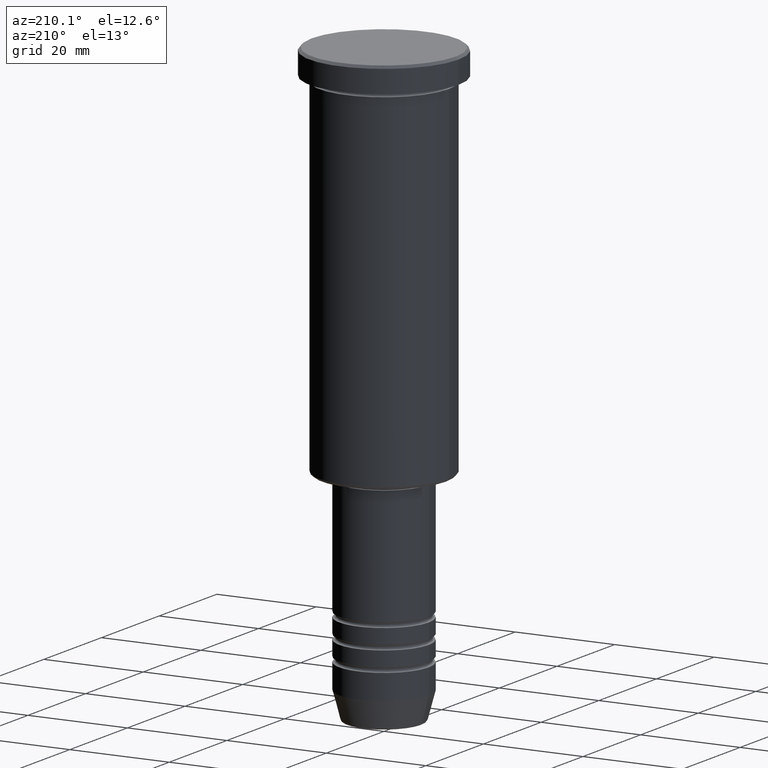
[diagram: clean part render]
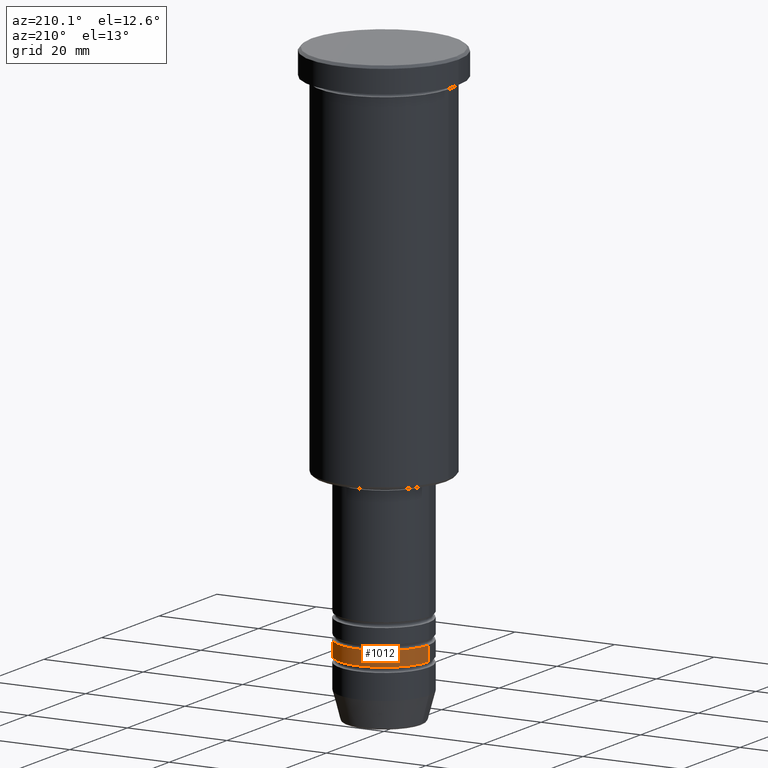
[diagram: same view with one face highlighted and labeled with its STEP entity id]
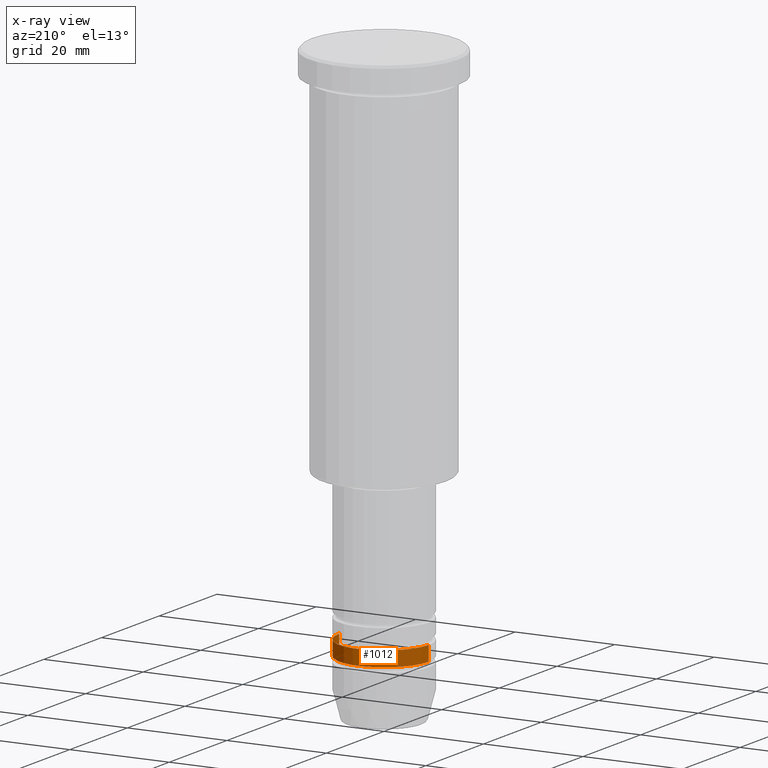
[diagram: x-ray of the same camera — body ghosted, the highlighted face saturated]
A machine part, auxiliary view. The second image highlights one B-rep face of the part: STEP entity #1012.
The next image is the same camera in x-ray: the body ghosted, the highlighted face saturated — about 0% of this face is hidden behind the body in this view.
In plain terms, the highlighted cylindrical surface (partial cylindrical patch) has radius 9 mm, axis along (-0, -0, 1).
Its self-contained STEP definition (entity closure, byte-faithful):
#56 = DIRECTION ( 'NONE',  ( -0.000000000000000000, -0.000000000000000000, 1.000000000000000000 ) ) ;
#121 = EDGE_CURVE ( 'NONE', #474, #139, #620, .T. ) ;
#137 = ORIENTED_EDGE ( 'NONE', *, *, #229, .F. ) ;
#139 = VERTEX_POINT ( 'NONE', #630 ) ;
#205 = DIRECTION ( 'NONE',  ( 1.000000000000000000, 0.000000000000000000, 0.000000000000000000 ) ) ;
#216 = EDGE_LOOP ( 'NONE', ( #902, #420, #137, #941 ) ) ;
#220 = CARTESIAN_POINT ( 'NONE',  ( -9.000000000000001776, 1.102182119232617911E-15, 0.000000000000000000 ) ) ;
#229 = EDGE_CURVE ( 'NONE', #139, #670, #328, .T. ) ;
#306 = CARTESIAN_POINT ( 'NONE',  ( -9.000000000000001776, 1.102182119232617911E-15, -108.4999999999999716 ) ) ;
#328 = CIRCLE ( 'NONE', #814, 9.000000000000000000 ) ;
#336 = EDGE_CURVE ( 'NONE', #695, #670, #593, .T. ) ;
#355 = EDGE_CURVE ( 'NONE', #474, #695, #663, .T. ) ;
#364 = VECTOR ( 'NONE', #989, 1000.000000000000000 ) ;
#365 = DIRECTION ( 'NONE',  ( -0.000000000000000000, -0.000000000000000000, 1.000000000000000000 ) ) ;
#383 = AXIS2_PLACEMENT_3D ( 'NONE', #993, #365, #632 ) ;
#409 = DIRECTION ( 'NONE',  ( -0.000000000000000000, -0.000000000000000000, 1.000000000000000000 ) ) ;
#420 = ORIENTED_EDGE ( 'NONE', *, *, #336, .T. ) ;
#441 = CARTESIAN_POINT ( 'NONE',  ( 9.000000000000001776, 0.000000000000000000, 0.000000000000000000 ) ) ;
#474 = VERTEX_POINT ( 'NONE', #892 ) ;
#579 = CARTESIAN_POINT ( 'NONE',  ( 0.000000000000000000, 0.000000000000000000, -108.4999999999999716 ) ) ;
#593 = LINE ( 'NONE', #220, #759 ) ;
#620 = LINE ( 'NONE', #441, #364 ) ;
#629 = CYLINDRICAL_SURFACE ( 'NONE', #383, 9.000000000000001776 ) ;
#630 = CARTESIAN_POINT ( 'NONE',  ( 9.000000000000000000, 0.000000000000000000, -105.4999999999999858 ) ) ;
#632 = DIRECTION ( 'NONE',  ( 1.000000000000000000, 0.000000000000000000, 0.000000000000000000 ) ) ;
#663 = CIRCLE ( 'NONE', #1076, 9.000000000000001776 ) ;
#670 = VERTEX_POINT ( 'NONE', #863 ) ;
#695 = VERTEX_POINT ( 'NONE', #306 ) ;
#759 = VECTOR ( 'NONE', #409, 1000.000000000000000 ) ;
#814 = AXIS2_PLACEMENT_3D ( 'NONE', #1024, #998, #205 ) ;
#863 = CARTESIAN_POINT ( 'NONE',  ( -9.000000000000000000, 1.102182119232617714E-15, -105.4999999999999858 ) ) ;
#892 = CARTESIAN_POINT ( 'NONE',  ( 9.000000000000001776, 0.000000000000000000, -108.4999999999999716 ) ) ;
#902 = ORIENTED_EDGE ( 'NONE', *, *, #355, .T. ) ;
#941 = ORIENTED_EDGE ( 'NONE', *, *, #121, .F. ) ;
#989 = DIRECTION ( 'NONE',  ( -0.000000000000000000, -0.000000000000000000, 1.000000000000000000 ) ) ;
#993 = CARTESIAN_POINT ( 'NONE',  ( 0.000000000000000000, 0.000000000000000000, 0.000000000000000000 ) ) ;
#998 = DIRECTION ( 'NONE',  ( -0.000000000000000000, -0.000000000000000000, 1.000000000000000000 ) ) ;
#1012 = ADVANCED_FACE ( 'NONE', ( #1017 ), #629, .T. ) ;
#1017 = FACE_OUTER_BOUND ( 'NONE', #216, .T. ) ;
#1024 = CARTESIAN_POINT ( 'NONE',  ( 0.000000000000000000, 0.000000000000000000, -105.4999999999999858 ) ) ;
#1076 = AXIS2_PLACEMENT_3D ( 'NONE', #579, #56, #1142 ) ;
#1142 = DIRECTION ( 'NONE',  ( 1.000000000000000000, 0.000000000000000000, 0.000000000000000000 ) ) ;